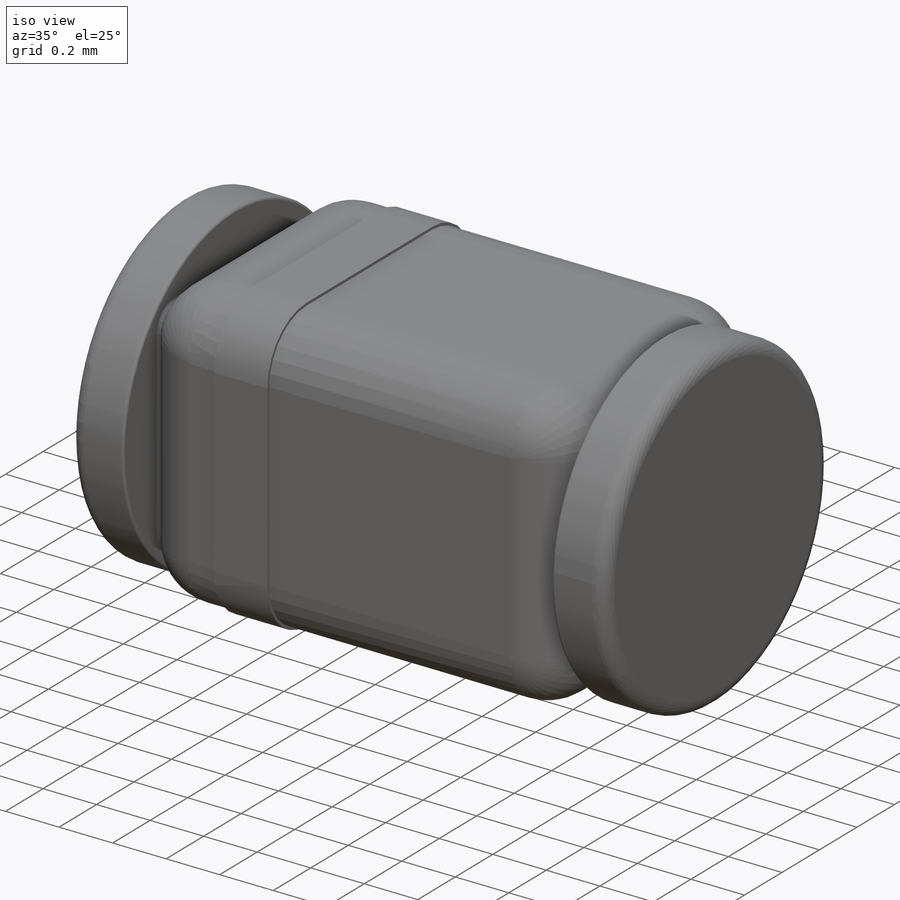
[diagram: iso view]
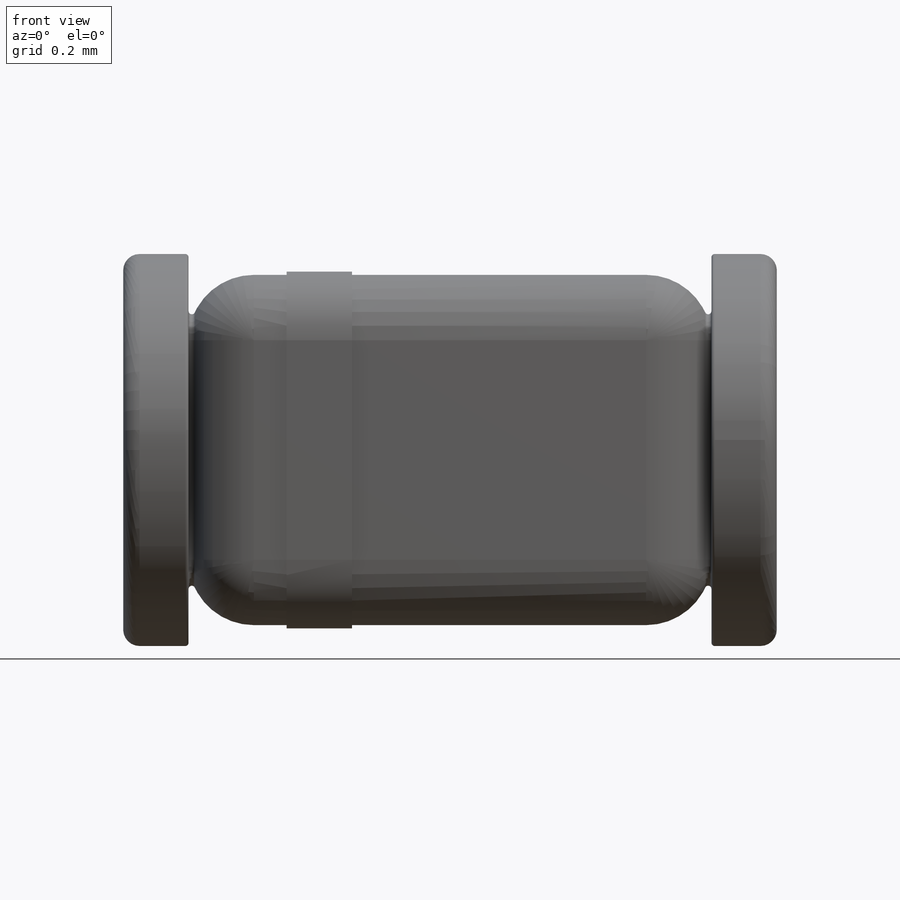
[diagram: front view]
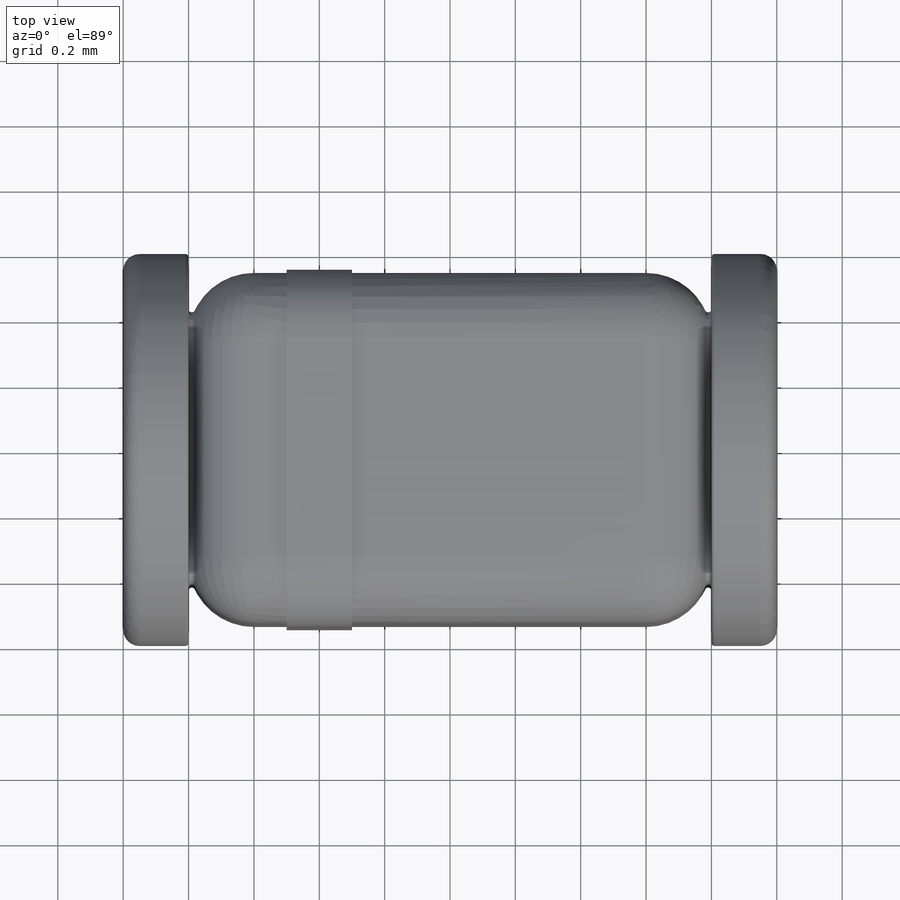
[diagram: top view]
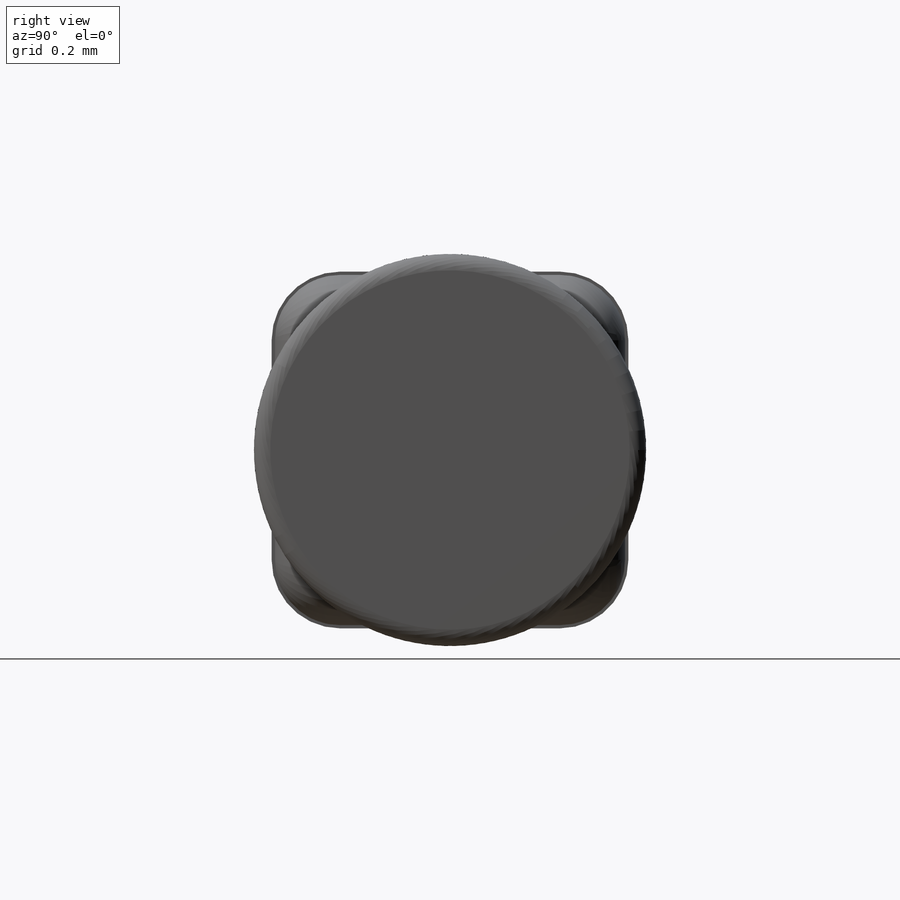
[diagram: right view]
SOLIDWORKS PART (.sldprt)
format: sldprt  version: not decoded by parser v0  size: 396,800 bytes
history: native  units: mm
features: sketch x3, extrude x3, fillet x3, material x1, mirror x1, plane x1 (+12 scaffold rows collapsed)
feature tree (24):
  scaffold x12  (default folders/planes/origin — collapsed)
  material  "Material <not specified>"
  sketch  "Sketch1"  dims[D1=1.2mm D2=1.35mm]
  extrude  "Boss-Extrude1"  Depth=1.6mm
  fillet  "Fillet1"  Radius=0.2mm
  sketch  "Sketch2"  dims[D1=1.2mm]
  extrude  "Boss-Extrude2"  Depth=0.2mm
  mirror  "Mirror1"
  fillet  "Fillet2"  Radius=0.05mm
  fillet  "Fillet3"  Radius=0.01mm
  plane  "Plane1"  Offset=0.4mm
  sketch  "Sketch3"  dims[D1=0.2mm D2=0.01mm]
  extrude  "Boss-Extrude3"  Depth=0.2mm
decode coverage: 9 of 10 modeling features carry decoded parameters
note: suppression state not decoded; provenance and decode notes live in map.json
